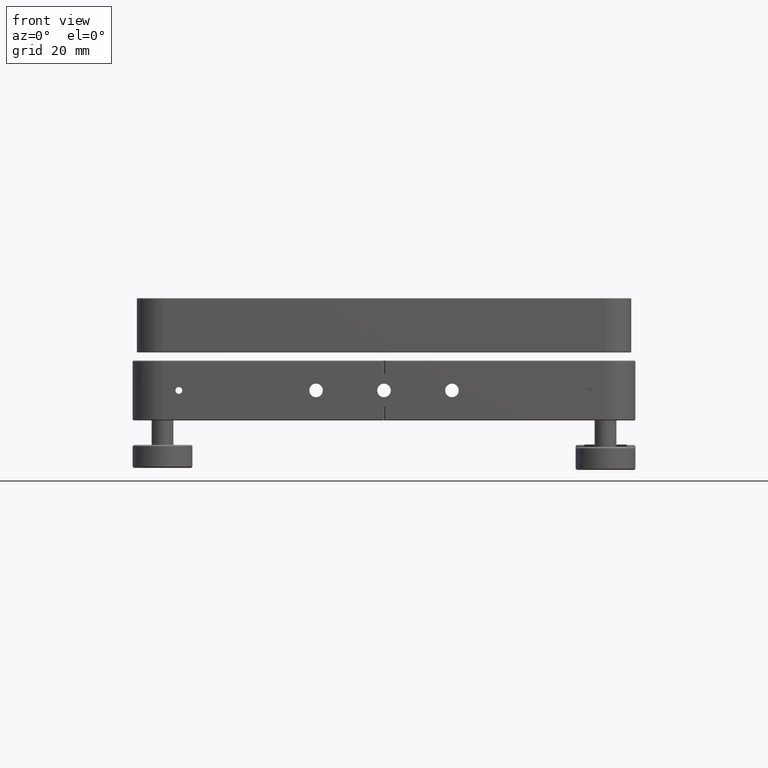
[diagram: clean part render]
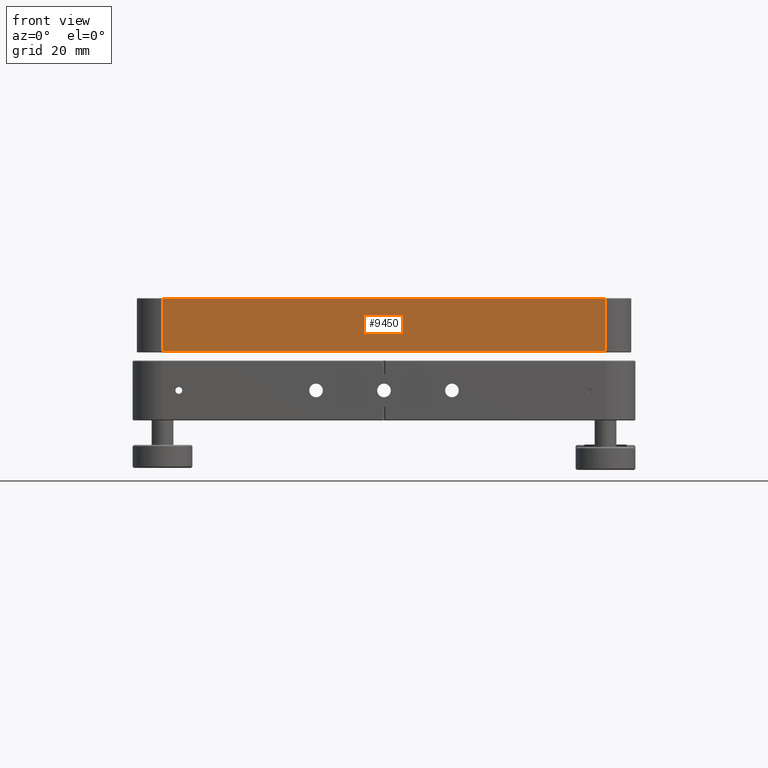
[diagram: same view with one face highlighted and labeled with its STEP entity id]
A machine part, front view. The second image highlights one B-rep face of the part: STEP entity #9450.
In plain terms, the highlighted planar face has unit normal (-0, 1, 0).
Its self-contained STEP definition (entity closure, byte-faithful):
#570 = LINE ( 'NONE', #12622, #7562 ) ;
#581 = VERTEX_POINT ( 'NONE', #11040 ) ;
#1340 = LINE ( 'NONE', #5309, #8771 ) ;
#1402 = ORIENTED_EDGE ( 'NONE', *, *, #5193, .T. ) ;
#2640 = VECTOR ( 'NONE', #4247, 1000.000000000000000 ) ;
#3260 = LINE ( 'NONE', #6361, #2640 ) ;
#3712 = DIRECTION ( 'NONE',  ( 1.460576560598802145E-21, -2.373071560003761499E-36, 1.000000000000000000 ) ) ;
#4247 = DIRECTION ( 'NONE',  ( -1.460576560598802145E-21, 2.373071560003761499E-36, -1.000000000000000000 ) ) ;
#4906 = VERTEX_POINT ( 'NONE', #11783 ) ;
#5193 = EDGE_CURVE ( 'NONE', #12960, #581, #1340, .T. ) ;
#5309 = CARTESIAN_POINT ( 'NONE',  ( -91.00000000000038369, -91.00000000000022737, 14.23528137423856244 ) ) ;
#5380 = DIRECTION ( 'NONE',  ( 1.000000000000000000, 6.383782391594646163E-16, -1.460576560598806094E-21 ) ) ;
#5447 = PLANE ( 'NONE',  #7067 ) ;
#5511 = CARTESIAN_POINT ( 'NONE',  ( -91.00000000000038369, -91.00000000000022737, 33.98528137423857487 ) ) ;
#6361 = CARTESIAN_POINT ( 'NONE',  ( -81.50000000000039790, -91.00000000000022737, 33.98528137423857487 ) ) ;
#6548 = VERTEX_POINT ( 'NONE', #12842 ) ;
#6623 = ORIENTED_EDGE ( 'NONE', *, *, #7358, .T. ) ;
#7067 = AXIS2_PLACEMENT_3D ( 'NONE', #5511, #7483, #10518 ) ;
#7252 = VECTOR ( 'NONE', #3712, 1000.000000000000000 ) ;
#7358 = EDGE_CURVE ( 'NONE', #4906, #6548, #570, .T. ) ;
#7483 = DIRECTION ( 'NONE',  ( -6.383782391594645177E-16, 1.000000000000000000, 3.305471852916411442E-36 ) ) ;
#7484 = ORIENTED_EDGE ( 'NONE', *, *, #9528, .T. ) ;
#7562 = VECTOR ( 'NONE', #8726, 1000.000000000000000 ) ;
#7563 = LINE ( 'NONE', #11586, #7252 ) ;
#8726 = DIRECTION ( 'NONE',  ( -1.000000000000000000, -6.383782391594646163E-16, 1.460576560598806094E-21 ) ) ;
#8771 = VECTOR ( 'NONE', #5380, 1000.000000000000000 ) ;
#8967 = EDGE_LOOP ( 'NONE', ( #7484, #1402, #12487, #6623 ) ) ;
#9450 = ADVANCED_FACE ( 'NONE', ( #12214 ), #5447, .F. ) ;
#9528 = EDGE_CURVE ( 'NONE', #6548, #12960, #3260, .T. ) ;
#10518 = DIRECTION ( 'NONE',  ( -1.460576560598802145E-21, 2.373071560003761499E-36, -1.000000000000000000 ) ) ;
#11040 = CARTESIAN_POINT ( 'NONE',  ( 81.50000000000012790, -91.00000000000012790, 14.23528137423856244 ) ) ;
#11289 = CARTESIAN_POINT ( 'NONE',  ( -81.50000000000039790, -91.00000000000022737, 14.23528137423856244 ) ) ;
#11497 = EDGE_CURVE ( 'NONE', #581, #4906, #7563, .T. ) ;
#11586 = CARTESIAN_POINT ( 'NONE',  ( 81.50000000000012790, -91.00000000000012790, 33.98528137423857487 ) ) ;
#11783 = CARTESIAN_POINT ( 'NONE',  ( 81.50000000000012790, -91.00000000000012790, 33.73528137423856066 ) ) ;
#12214 = FACE_OUTER_BOUND ( 'NONE', #8967, .T. ) ;
#12487 = ORIENTED_EDGE ( 'NONE', *, *, #11497, .T. ) ;
#12622 = CARTESIAN_POINT ( 'NONE',  ( -81.50000000000039790, -91.00000000000022737, 33.73528137423856066 ) ) ;
#12842 = CARTESIAN_POINT ( 'NONE',  ( -81.50000000000039790, -91.00000000000022737, 33.73528137423856066 ) ) ;
#12960 = VERTEX_POINT ( 'NONE', #11289 ) ;